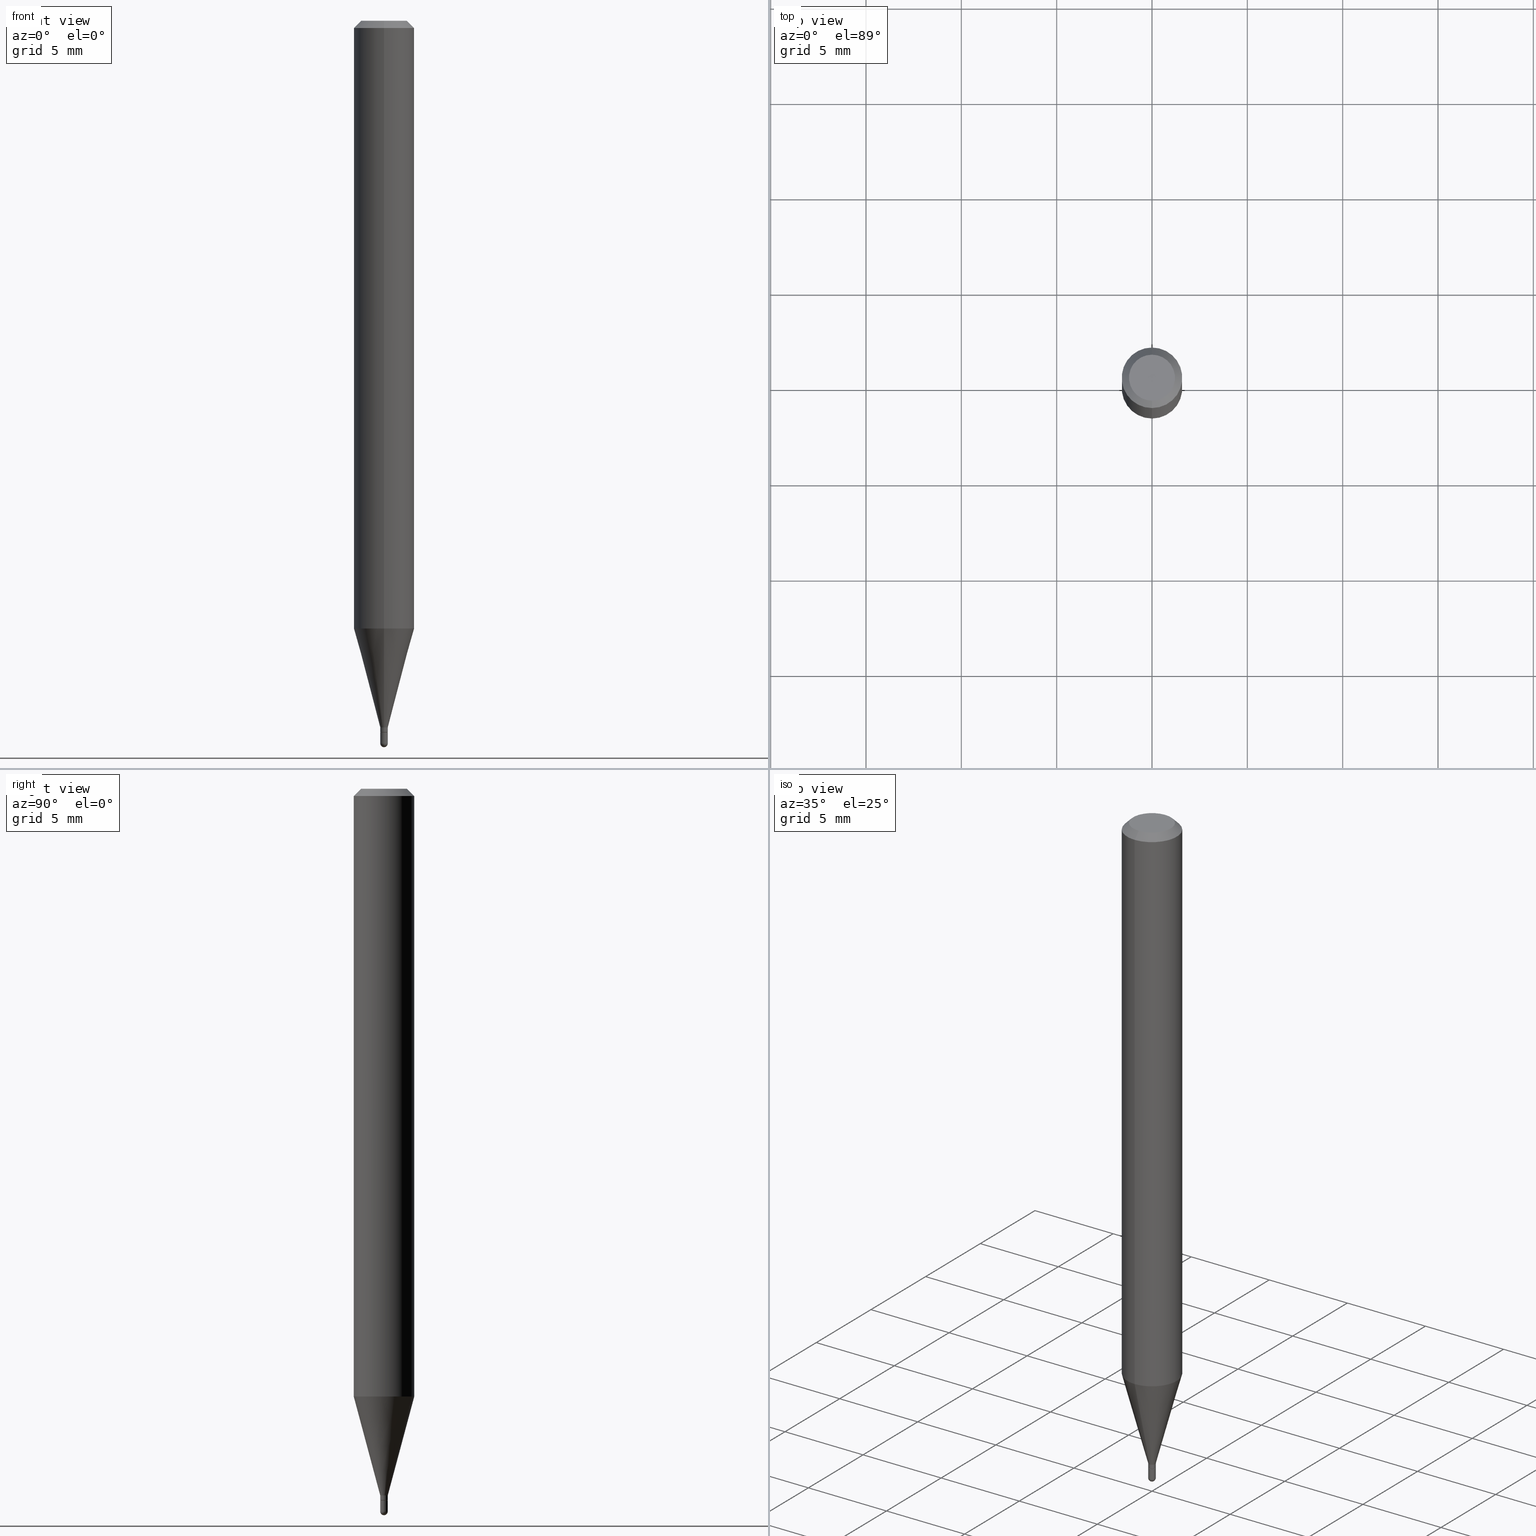
[diagram: canonical four-view strip — front | top / right | iso, engineering-drawing reading convention]
A machine part, canonical four-view strip (front | top / right | iso — engineering-drawing reading convention). The complete STEP part file that produces these views, byte-faithful:
ISO-10303-21;
HEADER;
FILE_DESCRIPTION (( 'STEP AP203' ),
    '1' );
FILE_NAME ('39002.STEP',
    '2024-03-08T12:43:06',
    ( '' ),
    ( '' ),
    'SwSTEP 2.0',
    'SolidWorks 2023',
    '' );
FILE_SCHEMA (( 'CONFIG_CONTROL_DESIGN' ));
ENDSEC;

DATA;
#1 = CARTESIAN_POINT ( 'NONE',  ( 0.000000000000000000, 0.000000000000000000, 0.000000000000000000 ) ) ;
#2 = AXIS2_PLACEMENT_3D ( 'NONE', #502, #470, #120 ) ;
#3 = CONICAL_SURFACE ( 'NONE', #84, 0.007299999999999999198, 0.7853981633974739252 ) ;
#4 = CC_DESIGN_DATE_AND_TIME_ASSIGNMENT ( #161, #36, ( #248 ) ) ;
#5 = LINE ( 'NONE', #97, #508 ) ;
#6 = CARTESIAN_POINT ( 'NONE',  ( 3.590824090298550822E-29, -5.127737057301476164E-15, -1.468500000000000139 ) ) ;
#7 = ORIENTED_EDGE ( 'NONE', *, *, #504, .T. ) ;
#8 = FACE_OUTER_BOUND ( 'NONE', #315, .T. ) ;
#9 = ORIENTED_EDGE ( 'NONE', *, *, #411, .F. ) ;
#10 = VECTOR ( 'NONE', #25, 39.37007874015748143 ) ;
#11 = CIRCLE ( 'NONE', #485, 0.04749999999999999362 ) ;
#12 = DIRECTION ( 'NONE',  ( -6.982962677686265922E-15, -1.000000000000000000, 0.000000000000000000 ) ) ;
#13 = DIRECTION ( 'NONE',  ( 2.445232611711644426E-29, -3.491819582772540483E-15, -1.000000000000000000 ) ) ;
#14 = EDGE_CURVE ( 'NONE', #378, #229, #360, .T. ) ;
#15 = CARTESIAN_POINT ( 'NONE',  ( -0.007799999999999999642, -5.114064936901873450E-15, -1.469000000000000083 ) ) ;
#16 = APPLICATION_PROTOCOL_DEFINITION ( 'international standard', 'config_control_design', 1994, #40 ) ;
#17 = VERTEX_POINT ( 'NONE', #419 ) ;
#18 = AXIS2_PLACEMENT_3D ( 'NONE', #293, #398, #207 ) ;
#19 = CIRCLE ( 'NONE', #281, 0.007299999999999999198 ) ;
#20 = DIRECTION ( 'NONE',  ( 1.000000000000000000, -6.982962677686265922E-15, 4.883557194083112340E-29 ) ) ;
#21 =( NAMED_UNIT ( * ) SI_UNIT ( $, .STERADIAN. ) SOLID_ANGLE_UNIT ( ) );
#22 = EDGE_LOOP ( 'NONE', ( #269, #9, #460, #71 ) ) ;
#23 = EDGE_CURVE ( 'NONE', #110, #17, #61, .T. ) ;
#24 = CARTESIAN_POINT ( 'NONE',  ( 0.000000000000000000, 0.000000000000000000, 0.000000000000000000 ) ) ;
#25 = DIRECTION ( 'NONE',  ( -2.445232611711644986E-29, 3.491819582772540483E-15, 1.000000000000000000 ) ) ;
#26 = FACE_OUTER_BOUND ( 'NONE', #396, .T. ) ;
#27 = EDGE_LOOP ( 'NONE', ( #346, #366, #466, #230 ) ) ;
#28 = EDGE_LOOP ( 'NONE', ( #403, #390, #32, #62 ) ) ;
#29 = PRODUCT_DEFINITION_FORMATION_WITH_SPECIFIED_SOURCE ( 'ANY', '', #184, .NOT_KNOWN. ) ;
#30 = APPROVAL_STATUS ( 'not_yet_approved' ) ;
#31 = CARTESIAN_POINT ( 'NONE',  ( -5.097562754707381679E-17, -0.007300000000005128775, -1.469000000000000083 ) ) ;
#32 = ORIENTED_EDGE ( 'NONE', *, *, #294, .F. ) ;
#33 = DIRECTION ( 'NONE',  ( 1.000000000000000000, -6.982962677686266711E-15, 4.876176775795935793E-29 ) ) ;
#34 = EDGE_CURVE ( 'NONE', #201, #144, #241, .T. ) ;
#35 = DIRECTION ( 'NONE',  ( -2.445232611711644986E-29, 3.491819582772540088E-15, 1.000000000000000000 ) ) ;
#36 = DATE_TIME_ROLE ( 'classification_date' ) ;
#37 = CARTESIAN_POINT ( 'NONE',  ( 3.667848917567469827E-31, -5.237729374158814249E-17, -0.01500000000000000812 ) ) ;
#38 = ORIENTED_EDGE ( 'NONE', *, *, #436, .F. ) ;
#39 = AXIS2_PLACEMENT_3D ( 'NONE', #373, #301, #447 ) ;
#40 = APPLICATION_CONTEXT ( 'configuration controlled 3d designs of mechanical parts and assemblies' ) ;
#41 = EDGE_CURVE ( 'NONE', #463, #117, #324, .T. ) ;
#42 = FACE_OUTER_BOUND ( 'NONE', #263, .T. ) ;
#43 = DIRECTION ( 'NONE',  ( -2.445232611711644986E-29, 3.491819582772540088E-15, 1.000000000000000000 ) ) ;
#44 = DIRECTION ( 'NONE',  ( -2.445232611711644986E-29, 3.491819582772540088E-15, 1.000000000000000000 ) ) ;
#45 = CC_DESIGN_APPROVAL ( #213, ( #248 ) ) ;
#46 = CARTESIAN_POINT ( 'NONE',  ( 5.446710888598957169E-17, 0.007799999999994819758, -1.492199999999999971 ) ) ;
#47 = ORIENTED_EDGE ( 'NONE', *, *, #244, .T. ) ;
#48 = ORIENTED_EDGE ( 'NONE', *, *, #321, .F. ) ;
#49 = ADVANCED_FACE ( 'NONE', ( #177 ), #492, .T. ) ;
#50 = DIRECTION ( 'NONE',  ( 1.000000000000000000, -6.982962677686283277E-15, 0.000000000000000000 ) ) ;
#51 = CARTESIAN_POINT ( 'NONE',  ( 3.592046706604406780E-29, -5.129482967092862317E-15, -1.469000000000000083 ) ) ;
#52 = CIRCLE ( 'NONE', #347, 0.007799999999999999642 ) ;
#53 = LOCAL_TIME ( 7, 43, 6.000000000000000000, #265 ) ;
#54 = CARTESIAN_POINT ( 'NONE',  ( -0.007799999999999999642, 5.542233338928781195E-17, -3.836769370398826244E-31 ) ) ;
#55 = ADVANCED_FACE ( 'NONE', ( #339 ), #266, .F. ) ;
#56 = CARTESIAN_POINT ( 'NONE',  ( -5.446710888591665753E-17, -0.007800000000005017330, -1.459000000000000297 ) ) ;
#57 = PERSON_AND_ORGANIZATION_ROLE ( 'design_owner' ) ;
#58 = DIRECTION ( 'NONE',  ( -2.445232611711644986E-29, 3.491819582772540088E-15, 1.000000000000000000 ) ) ;
#59 = DIRECTION ( 'NONE',  ( -1.807323732225330928E-15, -0.2588190451025182970, 0.9659258262890689783 ) ) ;
#60 = PERSON_AND_ORGANIZATION_ROLE ( 'creator' ) ;
#61 = LINE ( 'NONE', #31, #479 ) ;
#62 = ORIENTED_EDGE ( 'NONE', *, *, #82, .F. ) ;
#63 = CIRCLE ( 'NONE', #464, 0.007299999999999999198 ) ;
#64 = EDGE_CURVE ( 'NONE', #285, #226, #454, .T. ) ;
#65 = VECTOR ( 'NONE', #336, 39.37007874015748143 ) ;
#66 = CARTESIAN_POINT ( 'NONE',  ( 4.440892098500930859E-16, 0.06249999999999560074, -1.254856820825983377 ) ) ;
#67 = DIRECTION ( 'NONE',  ( -6.982962677686265922E-15, -1.000000000000000000, 3.491819582772540483E-15 ) ) ;
#68 = APPLICATION_CONTEXT ( 'configuration controlled 3d designs of mechanical parts and assemblies' ) ;
#69 = APPROVAL_DATE_TIME ( #151, #372 ) ;
#70 = DIRECTION ( 'NONE',  ( -6.982962677686265922E-15, -1.000000000000000000, 0.000000000000000000 ) ) ;
#71 = ORIENTED_EDGE ( 'NONE', *, *, #166, .T. ) ;
#72 = DATE_AND_TIME ( #302, #137 ) ;
#73 = DIRECTION ( 'NONE',  ( -7.105427357601000281E-15, -1.000000000000000000, 0.000000000000000000 ) ) ;
#74 = AXIS2_PLACEMENT_3D ( 'NONE', #474, #389, #159 ) ;
#75 = AXIS2_PLACEMENT_3D ( 'NONE', #333, #438, #169 ) ;
#76 = FACE_OUTER_BOUND ( 'NONE', #27, .T. ) ;
#77 = EDGE_CURVE ( 'NONE', #402, #226, #412, .T. ) ;
#78 = DIRECTION ( 'NONE',  ( 6.982962677686265922E-15, 1.000000000000000000, 0.000000000000000000 ) ) ;
#79 = ORIENTED_EDGE ( 'NONE', *, *, #418, .F. ) ;
#80 = DIRECTION ( 'NONE',  ( -2.445232611711644986E-29, 3.491819582772540483E-15, 1.000000000000000000 ) ) ;
#81 = VERTEX_POINT ( 'NONE', #511 ) ;
#82 = EDGE_CURVE ( 'NONE', #144, #81, #279, .T. ) ;
#83 = DIRECTION ( 'NONE',  ( -6.982962677686265922E-15, -1.000000000000000000, 3.491819582772540483E-15 ) ) ;
#84 = AXIS2_PLACEMENT_3D ( 'NONE', #443, #476, #12 ) ;
#85 = DIRECTION ( 'NONE',  ( -6.982962677686265922E-15, -1.000000000000000000, 3.491819582772540088E-15 ) ) ;
#86 = ORIENTED_EDGE ( 'NONE', *, *, #280, .T. ) ;
#87 = DIRECTION ( 'NONE',  ( -2.445232611711644986E-29, 3.491819582772540088E-15, 1.000000000000000000 ) ) ;
#88 = ORIENTED_EDGE ( 'NONE', *, *, #388, .T. ) ;
#89 = CARTESIAN_POINT ( 'NONE',  ( 3.840629472727447874E-16, 0.04749999999999999362, -1.747056831868805136E-16 ) ) ;
#90 = ORIENTED_EDGE ( 'NONE', *, *, #457, .T. ) ;
#91 = ORIENTED_EDGE ( 'NONE', *, *, #82, .T. ) ;
#92 = ADVANCED_FACE ( 'NONE', ( #468 ), #387, .T. ) ;
#93 = PRODUCT_RELATED_PRODUCT_CATEGORY ( 'detail', '', ( #184 ) ) ;
#94 = FACE_OUTER_BOUND ( 'NONE', #197, .T. ) ;
#95 = EDGE_LOOP ( 'NONE', ( #451, #267, #250, #149 ) ) ;
#96 = CARTESIAN_POINT ( 'NONE',  ( 5.364597654992319424E-17, 0.007299999999994869621, -1.469000000000000083 ) ) ;
#97 = CARTESIAN_POINT ( 'NONE',  ( 4.364351673553919652E-16, 0.06249999999999995143, -0.01500000000000022669 ) ) ;
#98 = AXIS2_PLACEMENT_3D ( 'NONE', #106, #303, #306 ) ;
#99 = LOCAL_TIME ( 7, 43, 6.000000000000000000, #270 ) ;
#100 = CARTESIAN_POINT ( 'NONE',  ( 5.542233338932293475E-17, 0.007799999999994828431, -1.459000000000000297 ) ) ;
#101 = CARTESIAN_POINT ( 'NONE',  ( 3.592393676285966338E-29, -5.128986086760581011E-15, -1.469000000000000083 ) ) ;
#102 = COORDINATED_UNIVERSAL_TIME_OFFSET ( 5, 0, .BEHIND. ) ;
#103 = ORIENTED_EDGE ( 'NONE', *, *, #473, .F. ) ;
#104 = DIRECTION ( 'NONE',  ( -6.982962677686266711E-15, -1.000000000000000000, 3.491819582772540483E-15 ) ) ;
#105 = PERSON_AND_ORGANIZATION_ROLE ( 'classification_officer' ) ;
#106 = CARTESIAN_POINT ( 'NONE',  ( 5.446710888598879516E-17, 0.007799999999994870932, -1.469000000000000083 ) ) ;
#107 = AXIS2_PLACEMENT_3D ( 'NONE', #431, #274, #33 ) ;
#108 = PERSON_AND_ORGANIZATION ( #435, #392 ) ;
#109 = DIRECTION ( 'NONE',  ( 1.000000000000000000, -6.982962677686283277E-15, 0.000000000000000000 ) ) ;
#110 = VERTEX_POINT ( 'NONE', #354 ) ;
#111 = EDGE_LOOP ( 'NONE', ( #153, #300, #143, #217 ) ) ;
#112 = COORDINATED_UNIVERSAL_TIME_OFFSET ( 5, 0, .BEHIND. ) ;
#113 = DIRECTION ( 'NONE',  ( -2.445468806185136597E-29, 3.491481338843145583E-15, 1.000000000000000000 ) ) ;
#114 = ORIENTED_EDGE ( 'NONE', *, *, #244, .F. ) ;
#115 = EDGE_CURVE ( 'NONE', #117, #463, #391, .T. ) ;
#116 = PERSON_AND_ORGANIZATION ( #435, #392 ) ;
#117 = VERTEX_POINT ( 'NONE', #395 ) ;
#118 = VECTOR ( 'NONE', #135, 39.37007874015748143 ) ;
#119 = FACE_OUTER_BOUND ( 'NONE', #272, .T. ) ;
#120 = DIRECTION ( 'NONE',  ( 6.982962677686265922E-15, 1.000000000000000000, -3.483106191921935554E-15 ) ) ;
#121 = ORIENTED_EDGE ( 'NONE', *, *, #321, .T. ) ;
#122 = ADVANCED_FACE ( 'NONE', ( #507 ), #323, .T. ) ;
#123 = CYLINDRICAL_SURFACE ( 'NONE', #154, 0.06250000000000000000 ) ;
#124 = VECTOR ( 'NONE', #408, 39.37007874015748143 ) ;
#125 = DIRECTION ( 'NONE',  ( -6.982962677686265922E-15, -1.000000000000000000, 3.483106191921935554E-15 ) ) ;
#126 = CARTESIAN_POINT ( 'NONE',  ( 0.000000000000000000, 0.000000000000000000, 0.000000000000000000 ) ) ;
#127 = ADVANCED_FACE ( 'NONE', ( #119 ), #320, .T. ) ;
#128 = FACE_OUTER_BOUND ( 'NONE', #426, .T. ) ;
#129 = CARTESIAN_POINT ( 'NONE',  ( 3.592046706604406780E-29, -5.129482967092862317E-15, -1.469000000000000083 ) ) ;
#130 = CIRCLE ( 'NONE', #179, 0.007799999999999999642 ) ;
#131 = ORIENTED_EDGE ( 'NONE', *, *, #385, .F. ) ;
#132 = DIRECTION ( 'NONE',  ( -6.982962677686265922E-15, -1.000000000000000000, 0.000000000000000000 ) ) ;
#133 = EDGE_CURVE ( 'NONE', #17, #285, #432, .T. ) ;
#134 = FACE_OUTER_BOUND ( 'NONE', #456, .T. ) ;
#135 = DIRECTION ( 'NONE',  ( -2.445232611711644986E-29, 3.491819582772540483E-15, 1.000000000000000000 ) ) ;
#136 = AXIS2_PLACEMENT_3D ( 'NONE', #282, #43, #83 ) ;
#137 = LOCAL_TIME ( 7, 43, 6.000000000000000000, #112 ) ;
#138 = LINE ( 'NONE', #56, #361 ) ;
#139 = PERSON_AND_ORGANIZATION ( #435, #392 ) ;
#140 = ORIENTED_EDGE ( 'NONE', *, *, #469, .T. ) ;
#141 = CARTESIAN_POINT ( 'NONE',  ( 3.567594380487290426E-29, -5.094564771265136885E-15, -1.459000000000000297 ) ) ;
#142 = EDGE_CURVE ( 'NONE', #117, #498, #191, .T. ) ;
#143 = ORIENTED_EDGE ( 'NONE', *, *, #77, .F. ) ;
#144 = VERTEX_POINT ( 'NONE', #393 ) ;
#145 = APPROVAL_ROLE ( '' ) ;
#146 = ORIENTED_EDGE ( 'NONE', *, *, #64, .F. ) ;
#147 = VECTOR ( 'NONE', #471, 39.37007874015748143 ) ;
#148 = CARTESIAN_POINT ( 'NONE',  ( 3.592046706604406780E-29, -5.129482967092862317E-15, -1.469000000000000083 ) ) ;
#149 = ORIENTED_EDGE ( 'NONE', *, *, #166, .F. ) ;
#150 = ADVANCED_FACE ( 'NONE', ( #42 ), #382, .T. ) ;
#151 = DATE_AND_TIME ( #491, #99 ) ;
#152 = DIRECTION ( 'NONE',  ( -4.937700262164674260E-15, -0.7071067811865632269, 0.7071067811865319186 ) ) ;
#153 = ORIENTED_EDGE ( 'NONE', *, *, #133, .T. ) ;
#154 = AXIS2_PLACEMENT_3D ( 'NONE', #126, #425, #85 ) ;
#155 = VECTOR ( 'NONE', #437, 39.37007874015748143 ) ;
#156 = PERSON_AND_ORGANIZATION ( #435, #392 ) ;
#157 = PRODUCT_DEFINITION ( 'UNKNOWN', '', #29, #427 ) ;
#158 = DIRECTION ( 'NONE',  ( -6.982962677686265922E-15, -1.000000000000000000, 4.370956789862821150E-15 ) ) ;
#159 = DIRECTION ( 'NONE',  ( 6.982962677686265922E-15, 1.000000000000000000, -3.483106191921935554E-15 ) ) ;
#160 = CC_DESIGN_PERSON_AND_ORGANIZATION_ASSIGNMENT ( #116, #216, ( #29 ) ) ;
#161 = DATE_AND_TIME ( #220, #163 ) ;
#162 = DIRECTION ( 'NONE',  ( -2.445232611711644986E-29, 3.491819582772540088E-15, 1.000000000000000000 ) ) ;
#163 = LOCAL_TIME ( 7, 43, 6.000000000000000000, #102 ) ;
#164 = DIRECTION ( 'NONE',  ( -2.445232611711644986E-29, 3.491819582772540088E-15, 1.000000000000000000 ) ) ;
#165 = ORIENTED_EDGE ( 'NONE', *, *, #14, .T. ) ;
#166 = EDGE_CURVE ( 'NONE', #397, #498, #212, .T. ) ;
#167 = CARTESIAN_POINT ( 'NONE',  ( 3.567594380487290426E-29, -5.094564771265136885E-15, -1.459000000000000297 ) ) ;
#168 = DIRECTION ( 'NONE',  ( -2.445232611711644986E-29, 3.491819582772540088E-15, 1.000000000000000000 ) ) ;
#169 = DIRECTION ( 'NONE',  ( 6.982962677686265922E-15, 1.000000000000000000, 0.000000000000000000 ) ) ;
#170 = CLOSED_SHELL ( 'NONE', ( #92, #313, #55, #209, #127 ) ) ;
#171 = EDGE_CURVE ( 'NONE', #463, #397, #428, .T. ) ;
#172 = AXIS2_PLACEMENT_3D ( 'NONE', #369, #256, #329 ) ;
#173 = DIRECTION ( 'NONE',  ( -6.982962677686265922E-15, -1.000000000000000000, 3.483106191921935554E-15 ) ) ;
#174 = CARTESIAN_POINT ( 'NONE',  ( 5.186961971052321953E-17, 0.007299999999994869621, -1.469000000000000083 ) ) ;
#175 = LINE ( 'NONE', #413, #332 ) ;
#176 = SECURITY_CLASSIFICATION_LEVEL ( 'unclassified' ) ;
#177 = FACE_OUTER_BOUND ( 'NONE', #495, .T. ) ;
#178 = AXIS2_PLACEMENT_3D ( 'NONE', #37, #510, #173 ) ;
#179 = AXIS2_PLACEMENT_3D ( 'NONE', #223, #257, #337 ) ;
#180 = ADVANCED_FACE ( 'NONE', ( #358 ), #123, .T. ) ;
#181 = CARTESIAN_POINT ( 'NONE',  ( -5.446710888595233499E-17, -0.007799999999999922447, 2.723619274562554444E-17 ) ) ;
#182 = DIRECTION ( 'NONE',  ( -6.982962677686265922E-15, -1.000000000000000000, 0.000000000000000000 ) ) ;
#183 = EDGE_LOOP ( 'NONE', ( #165, #478, #240, #186, #310 ) ) ;
#184 = PRODUCT ( '39002', '39002', '', ( #299 ) ) ;
#185 = ORIENTED_EDGE ( 'NONE', *, *, #388, .F. ) ;
#186 = ORIENTED_EDGE ( 'NONE', *, *, #335, .F. ) ;
#187 = CIRCLE ( 'NONE', #178, 0.06250000000000000000 ) ;
#188 = AXIS2_PLACEMENT_3D ( 'NONE', #24, #342, #309 ) ;
#189 =( NAMED_UNIT ( * ) PLANE_ANGLE_UNIT ( ) SI_UNIT ( $, .RADIAN. ) );
#190 = CARTESIAN_POINT ( 'NONE',  ( 3.068416821312490744E-29, -4.381733620535860243E-15, -1.254856820825983155 ) ) ;
#191 = LINE ( 'NONE', #318, #147 ) ;
#192 = CALENDAR_DATE ( 2024, 8, 3 ) ;
#193 = CARTESIAN_POINT ( 'NONE',  ( 3.649128552589461004E-29, -5.209988453821741932E-15, -1.492199999999999971 ) ) ;
#194 = CIRCLE ( 'NONE', #368, 0.007799999999999922447 ) ;
#195 = ADVANCED_FACE ( 'NONE', ( #76 ), #386, .T. ) ;
#196 = FACE_OUTER_BOUND ( 'NONE', #28, .T. ) ;
#197 = EDGE_LOOP ( 'NONE', ( #47, #222, #208, #228 ) ) ;
#198 = ADVANCED_BREP_SHAPE_REPRESENTATION ( '39002', ( #353, #501, #188 ), #440 ) ;
#199 = DIRECTION ( 'NONE',  ( 1.000000000000000000, -6.982962677686266711E-15, 4.876176775795935793E-29 ) ) ;
#200 = DIRECTION ( 'NONE',  ( -6.982962677686265922E-15, -1.000000000000000000, 0.000000000000000000 ) ) ;
#201 = VERTEX_POINT ( 'NONE', #327 ) ;
#202 = ADVANCED_FACE ( 'NONE', ( #236 ), #234, .T. ) ;
#203 = CLOSED_SHELL ( 'NONE', ( #122, #304, #150, #195, #450, #405, #180, #202, #363, #258, #512, #49 ) ) ;
#204 = AXIS2_PLACEMENT_3D ( 'NONE', #296, #20, #409 ) ;
#205 = PLANE ( 'NONE',  #18 ) ;
#206 = EDGE_LOOP ( 'NONE', ( #7, #482 ) ) ;
#207 = DIRECTION ( 'NONE',  ( -6.982962677686265922E-15, -1.000000000000000000, 3.491819582772540483E-15 ) ) ;
#208 = ORIENTED_EDGE ( 'NONE', *, *, #133, .F. ) ;
#209 = ADVANCED_FACE ( 'NONE', ( #196 ), #356, .T. ) ;
#210 = CARTESIAN_POINT ( 'NONE',  ( 4.440892098500934804E-16, 0.06249999999999995143, -0.01500000000000022669 ) ) ;
#211 = DIRECTION ( 'NONE',  ( -2.445232611711644986E-29, 3.491819582772540088E-15, 1.000000000000000000 ) ) ;
#212 = CIRCLE ( 'NONE', #445, 0.06250000000000000000 ) ;
#213 = APPROVAL ( #421, 'UNSPECIFIED' ) ;
#214 = DIRECTION ( 'NONE',  ( -2.445468806185136877E-29, 3.491481338843145188E-15, 1.000000000000000000 ) ) ;
#215 = DIRECTION ( 'NONE',  ( -6.982962677686265922E-15, -1.000000000000000000, 0.000000000000000000 ) ) ;
#216 = PERSON_AND_ORGANIZATION_ROLE ( 'design_supplier' ) ;
#217 = ORIENTED_EDGE ( 'NONE', *, *, #442, .F. ) ;
#218 = EDGE_CURVE ( 'NONE', #498, #397, #187, .T. ) ;
#219 = DIRECTION ( 'NONE',  ( -4.851104656540964275E-15, -0.7071067811865500152, -0.7071067811865450192 ) ) ;
#220 = CALENDAR_DATE ( 2024, 8, 3 ) ;
#221 = ORIENTED_EDGE ( 'NONE', *, *, #34, .T. ) ;
#222 = ORIENTED_EDGE ( 'NONE', *, *, #370, .T. ) ;
#223 = CARTESIAN_POINT ( 'NONE',  ( 3.592393676285966338E-29, -5.128986086760581011E-15, -1.469000000000000083 ) ) ;
#224 = APPLICATION_PROTOCOL_DEFINITION ( 'international standard', 'config_control_design', 1994, #68 ) ;
#225 = ORIENTED_EDGE ( 'NONE', *, *, #442, .T. ) ;
#226 = VERTEX_POINT ( 'NONE', #483 ) ;
#227 = DATE_TIME_ROLE ( 'creation_date' ) ;
#228 = ORIENTED_EDGE ( 'NONE', *, *, #23, .F. ) ;
#229 = VERTEX_POINT ( 'NONE', #284 ) ;
#230 = ORIENTED_EDGE ( 'NONE', *, *, #142, .F. ) ;
#231 = ORIENTED_EDGE ( 'NONE', *, *, #218, .T. ) ;
#232 = CALENDAR_DATE ( 2024, 8, 3 ) ;
#233 = ORIENTED_EDGE ( 'NONE', *, *, #350, .F. ) ;
#234 = CONICAL_SURFACE ( 'NONE', #74, 0.06250000000000000000, 0.7853981633974483900 ) ;
#235 = AXIS2_PLACEMENT_3D ( 'NONE', #141, #340, #215 ) ;
#236 = FACE_OUTER_BOUND ( 'NONE', #22, .T. ) ;
#237 = DIRECTION ( 'NONE',  ( 1.000000000000000000, -6.982962677686283277E-15, 0.000000000000000000 ) ) ;
#238 = DATE_AND_TIME ( #192, #423 ) ;
#239 = DIRECTION ( 'NONE',  ( -6.982962677686265922E-15, -1.000000000000000000, 3.491819582772540088E-15 ) ) ;
#240 = ORIENTED_EDGE ( 'NONE', *, *, #504, .F. ) ;
#241 = CIRCLE ( 'NONE', #331, 0.007800000000000059490 ) ;
#242 = CIRCLE ( 'NONE', #308, 0.04749999999999999362 ) ;
#243 = DIRECTION ( 'NONE',  ( -2.445468806185136597E-29, 3.491481338843145583E-15, 1.000000000000000000 ) ) ;
#244 = EDGE_CURVE ( 'NONE', #110, #291, #63, .T. ) ;
#245 = DIRECTION ( 'NONE',  ( -2.445232611711644986E-29, 3.491819582772540088E-15, 1.000000000000000000 ) ) ;
#246 = DIRECTION ( 'NONE',  ( -2.445232611711644986E-29, 3.491819582772540088E-15, 1.000000000000000000 ) ) ;
#247 = AXIS2_PLACEMENT_3D ( 'NONE', #6, #246, #254 ) ;
#248 = SECURITY_CLASSIFICATION ( '', '', #176 ) ;
#249 = DIRECTION ( 'NONE',  ( -6.982962677686265922E-15, -1.000000000000000000, 0.000000000000000000 ) ) ;
#250 = ORIENTED_EDGE ( 'NONE', *, *, #142, .T. ) ;
#251 = EDGE_CURVE ( 'NONE', #285, #17, #288, .T. ) ;
#252 = CARTESIAN_POINT ( 'NONE',  ( 3.649128552589461004E-29, -5.209988453821741932E-15, -1.492199999999999971 ) ) ;
#253 = ORIENTED_EDGE ( 'NONE', *, *, #251, .T. ) ;
#254 = DIRECTION ( 'NONE',  ( -6.982962677686265922E-15, -1.000000000000000000, 0.000000000000000000 ) ) ;
#255 = DIMENSIONAL_EXPONENTS ( 1.000000000000000000, 0.000000000000000000, 0.000000000000000000, 0.000000000000000000, 0.000000000000000000, 0.000000000000000000, 0.000000000000000000 ) ;
#256 = DIRECTION ( 'NONE',  ( -2.445468806185136597E-29, 3.491481338843145583E-15, 1.000000000000000000 ) ) ;
#257 = DIRECTION ( 'NONE',  ( -2.445468806185136597E-29, 3.491481338843145583E-15, 1.000000000000000000 ) ) ;
#258 = ADVANCED_FACE ( 'NONE', ( #134 ), #205, .F. ) ;
#259 = DIRECTION ( 'NONE',  ( -2.445468806185136597E-29, 3.491481338843145583E-15, 1.000000000000000000 ) ) ;
#260 = DIRECTION ( 'NONE',  ( -2.445232611711644986E-29, 3.491819582772540088E-15, 1.000000000000000000 ) ) ;
#261 = CARTESIAN_POINT ( 'NONE',  ( 3.648461522883901316E-29, -5.210943678325075887E-15, -1.492199999999999971 ) ) ;
#262 = LINE ( 'NONE', #181, #118 ) ;
#263 = EDGE_LOOP ( 'NONE', ( #131, #90, #231, #410 ) ) ;
#264 = ORIENTED_EDGE ( 'NONE', *, *, #280, .F. ) ;
#265 = COORDINATED_UNIVERSAL_TIME_OFFSET ( 5, 0, .BEHIND. ) ;
#266 = PLANE ( 'NONE',  #98 ) ;
#267 = ORIENTED_EDGE ( 'NONE', *, *, #41, .T. ) ;
#268 = PERSON_AND_ORGANIZATION ( #435, #392 ) ;
#269 = ORIENTED_EDGE ( 'NONE', *, *, #457, .F. ) ;
#270 = COORDINATED_UNIVERSAL_TIME_OFFSET ( 5, 0, .BEHIND. ) ;
#271 = VERTEX_POINT ( 'NONE', #362 ) ;
#272 = EDGE_LOOP ( 'NONE', ( #233, #88, #91, #459, #103 ) ) ;
#273 = CIRCLE ( 'NONE', #204, 0.007800000000000059490 ) ;
#274 = DIRECTION ( 'NONE',  ( -2.445468806185136597E-29, 3.491481338843145583E-15, 1.000000000000000000 ) ) ;
#275 = EDGE_CURVE ( 'NONE', #352, #397, #5, .T. ) ;
#276 = CARTESIAN_POINT ( 'NONE',  ( 3.667848917567469827E-31, -5.237729374158814249E-17, -0.01500000000000000812 ) ) ;
#277 = DIRECTION ( 'NONE',  ( -2.445468806185136597E-29, 3.491481338843145583E-15, 1.000000000000000000 ) ) ;
#278 = AXIS2_PLACEMENT_3D ( 'NONE', #190, #349, #500 ) ;
#279 = CIRCLE ( 'NONE', #407, 0.007799999999999999642 ) ;
#280 = EDGE_CURVE ( 'NONE', #226, #402, #194, .T. ) ;
#281 = AXIS2_PLACEMENT_3D ( 'NONE', #129, #87, #249 ) ;
#282 = CARTESIAN_POINT ( 'NONE',  ( 0.000000000000000000, 0.000000000000000000, 0.000000000000000000 ) ) ;
#283 = ORIENTED_EDGE ( 'NONE', *, *, #385, .T. ) ;
#284 = CARTESIAN_POINT ( 'NONE',  ( -0.007799999999999999642, -5.114064936901873450E-15, -1.492199999999999971 ) ) ;
#285 = VERTEX_POINT ( 'NONE', #444 ) ;
#286 = CC_DESIGN_PERSON_AND_ORGANIZATION_ASSIGNMENT ( #488, #60, ( #157 ) ) ;
#287 = FACE_OUTER_BOUND ( 'NONE', #312, .T. ) ;
#288 = CIRCLE ( 'NONE', #247, 0.007799999999999923314 ) ;
#289 = AXIS2_PLACEMENT_3D ( 'NONE', #148, #260, #182 ) ;
#290 = CARTESIAN_POINT ( 'NONE',  ( 0.007799999999999999642, -5.446710888595287733E-17, 3.803417885120829600E-31 ) ) ;
#291 = VERTEX_POINT ( 'NONE', #96 ) ;
#292 = PLANE ( 'NONE',  #480 ) ;
#293 = CARTESIAN_POINT ( 'NONE',  ( 3.592046706604406780E-29, -5.129482967092862317E-15, -1.469000000000000083 ) ) ;
#294 = EDGE_CURVE ( 'NONE', #81, #378, #446, .T. ) ;
#295 = AXIS2_PLACEMENT_3D ( 'NONE', #1, #164, #239 ) ;
#296 = CARTESIAN_POINT ( 'NONE',  ( 3.648461522883901316E-29, -5.210943678325075887E-15, -1.492199999999999971 ) ) ;
#297 = CONICAL_SURFACE ( 'NONE', #289, 0.007299999999999999198, 0.7853981633974739252 ) ;
#298 = FACE_OUTER_BOUND ( 'NONE', #377, .T. ) ;
#299 = MECHANICAL_CONTEXT ( 'NONE', #40, 'mechanical' ) ;
#300 = ORIENTED_EDGE ( 'NONE', *, *, #64, .T. ) ;
#301 = DIRECTION ( 'NONE',  ( -2.445232611711644986E-29, 3.491819582772540088E-15, 1.000000000000000000 ) ) ;
#302 = CALENDAR_DATE ( 2024, 8, 3 ) ;
#303 = DIRECTION ( 'NONE',  ( 2.438088387897960049E-29, -3.491481338843145188E-15, -1.000000000000000000 ) ) ;
#304 = ADVANCED_FACE ( 'NONE', ( #94 ), #3, .T. ) ;
#305 =( LENGTH_UNIT ( ) NAMED_UNIT ( * ) SI_UNIT ( $, .METRE. ) );
#306 = DIRECTION ( 'NONE',  ( -1.000000000000000000, 6.982962677686265922E-15, -4.876176775795935793E-29 ) ) ;
#307 = AXIS2_PLACEMENT_3D ( 'NONE', #351, #245, #158 ) ;
#308 = AXIS2_PLACEMENT_3D ( 'NONE', #490, #452, #104 ) ;
#309 = DIRECTION ( 'NONE',  ( 1.000000000000000000, 0.000000000000000000, 0.000000000000000000 ) ) ;
#310 = ORIENTED_EDGE ( 'NONE', *, *, #294, .T. ) ;
#311 = PERSON_AND_ORGANIZATION ( #435, #392 ) ;
#312 = EDGE_LOOP ( 'NONE', ( #343, #283 ) ) ;
#313 = ADVANCED_FACE ( 'NONE', ( #128 ), #406, .T. ) ;
#314 = CARTESIAN_POINT ( 'NONE',  ( 3.648461522883901316E-29, -5.210943678325075887E-15, -1.492199999999999971 ) ) ;
#315 = EDGE_LOOP ( 'NONE', ( #374, #86, #439, #381 ) ) ;
#316 = AXIS2_PLACEMENT_3D ( 'NONE', #344, #417, #70 ) ;
#317 = APPROVAL_PERSON_ORGANIZATION ( #156, #213, #509 ) ;
#318 = CARTESIAN_POINT ( 'NONE',  ( -4.364351673553916201E-16, -0.06250000000000000000, 2.182387239232837555E-16 ) ) ;
#319 = COORDINATED_UNIVERSAL_TIME_OFFSET ( 5, 0, .BEHIND. ) ;
#320 = CYLINDRICAL_SURFACE ( 'NONE', #505, 0.007799999999999999642 ) ;
#321 = EDGE_CURVE ( 'NONE', #291, #110, #19, .T. ) ;
#322 = UNCERTAINTY_MEASURE_WITH_UNIT (LENGTH_MEASURE( 1.000000000000000082E-05 ), #380, 'distance_accuracy_value', 'NONE');
#323 = CYLINDRICAL_SURFACE ( 'NONE', #136, 0.007799999999999922447 ) ;
#324 = CIRCLE ( 'NONE', #278, 0.06250000000000000000 ) ;
#325 = APPROVAL_PERSON_ORGANIZATION ( #348, #372, #145 ) ;
#326 = APPROVAL ( #30, 'UNSPECIFIED' ) ;
#327 = CARTESIAN_POINT ( 'NONE',  ( 3.667869694424925332E-29, -5.237699620516385943E-15, -1.500000000000000222 ) ) ;
#328 = ORIENTED_EDGE ( 'NONE', *, *, #77, .T. ) ;
#329 = DIRECTION ( 'NONE',  ( 1.000000000000000000, -6.982962677686283277E-15, 0.000000000000000000 ) ) ;
#330 = DIRECTION ( 'NONE',  ( -6.982962677686266711E-15, -1.000000000000000000, 3.491819582772540483E-15 ) ) ;
#331 = AXIS2_PLACEMENT_3D ( 'NONE', #261, #455, #73 ) ;
#332 = VECTOR ( 'NONE', #219, 39.37007874015748143 ) ;
#333 = CARTESIAN_POINT ( 'NONE',  ( 3.648461522883901316E-29, -5.210943678325075887E-15, -1.492199999999999971 ) ) ;
#334 = LINE ( 'NONE', #290, #155 ) ;
#335 = EDGE_CURVE ( 'NONE', #81, #271, #334, .T. ) ;
#336 = DIRECTION ( 'NONE',  ( 5.024295867788190974E-15, 0.7071067811865681119, 0.7071067811865270336 ) ) ;
#337 = DIRECTION ( 'NONE',  ( 1.000000000000000000, -6.982962677686283277E-15, 0.000000000000000000 ) ) ;
#338 = CC_DESIGN_SECURITY_CLASSIFICATION ( #248, ( #29 ) ) ;
#339 = FACE_OUTER_BOUND ( 'NONE', #206, .T. ) ;
#340 = DIRECTION ( 'NONE',  ( -2.445232611711644986E-29, 3.491819582772540088E-15, 1.000000000000000000 ) ) ;
#341 = CC_DESIGN_PERSON_AND_ORGANIZATION_ASSIGNMENT ( #108, #57, ( #184 ) ) ;
#342 = DIRECTION ( 'NONE',  ( 0.000000000000000000, 0.000000000000000000, 1.000000000000000000 ) ) ;
#343 = ORIENTED_EDGE ( 'NONE', *, *, #411, .T. ) ;
#344 = CARTESIAN_POINT ( 'NONE',  ( 3.567594380487290426E-29, -5.094564771265136885E-15, -1.459000000000000297 ) ) ;
#345 = PRODUCT_DEFINITION_SHAPE ( 'NONE', 'NONE',  #157 ) ;
#346 = ORIENTED_EDGE ( 'NONE', *, *, #115, .T. ) ;
#347 = AXIS2_PLACEMENT_3D ( 'NONE', #252, #404, #50 ) ;
#348 = PERSON_AND_ORGANIZATION ( #435, #392 ) ;
#349 = DIRECTION ( 'NONE',  ( -2.445232611711644986E-29, 3.491819582772540088E-15, 1.000000000000000000 ) ) ;
#350 = EDGE_CURVE ( 'NONE', #229, #429, #371, .T. ) ;
#351 = CARTESIAN_POINT ( 'NONE',  ( 3.068416821312490744E-29, -4.381733620535860243E-15, -1.254856820825983155 ) ) ;
#352 = VERTEX_POINT ( 'NONE', #89 ) ;
#353 = MANIFOLD_SOLID_BREP ( 'Body-Move/Copy2[1]', #170 ) ;
#354 = CARTESIAN_POINT ( 'NONE',  ( -5.097562754707381679E-17, -0.007300000000005128775, -1.469000000000000083 ) ) ;
#355 = AXIS2_PLACEMENT_3D ( 'NONE', #101, #259, #458 ) ;
#356 = SPHERICAL_SURFACE ( 'NONE', #399, 0.007800000000000059490 ) ;
#357 = CARTESIAN_POINT ( 'NONE',  ( 3.590824090298550822E-29, -5.127737057301476164E-15, -1.468500000000000139 ) ) ;
#358 = FACE_OUTER_BOUND ( 'NONE', #95, .T. ) ;
#359 = ORIENTED_EDGE ( 'NONE', *, *, #251, .F. ) ;
#360 = CIRCLE ( 'NONE', #375, 0.007799999999999999642 ) ;
#361 = VECTOR ( 'NONE', #59, 39.37007874015748143 ) ;
#362 = CARTESIAN_POINT ( 'NONE',  ( 0.007799999999999999642, -5.183453195646533500E-15, -1.469000000000000083 ) ) ;
#363 = ADVANCED_FACE ( 'NONE', ( #287 ), #292, .F. ) ;
#364 = CARTESIAN_POINT ( 'NONE',  ( 2.162625587450672198E-46, -3.088253583849936035E-32, -8.844253005184854386E-18 ) ) ;
#365 = CARTESIAN_POINT ( 'NONE',  ( -5.446710888591665753E-17, -0.007800000000005017330, -1.459000000000000297 ) ) ;
#366 = ORIENTED_EDGE ( 'NONE', *, *, #171, .T. ) ;
#367 = AXIS2_PLACEMENT_3D ( 'NONE', #357, #35, #200 ) ;
#368 = AXIS2_PLACEMENT_3D ( 'NONE', #167, #44, #477 ) ;
#369 = CARTESIAN_POINT ( 'NONE',  ( 3.649128552589461004E-29, -5.209988453821741932E-15, -1.492199999999999971 ) ) ;
#370 = EDGE_CURVE ( 'NONE', #291, #285, #401, .T. ) ;
#371 = LINE ( 'NONE', #54, #414 ) ;
#372 = APPROVAL ( #499, 'UNSPECIFIED' ) ;
#373 = CARTESIAN_POINT ( 'NONE',  ( 3.567594380487290426E-29, -5.094564771265136885E-15, -1.459000000000000297 ) ) ;
#374 = ORIENTED_EDGE ( 'NONE', *, *, #469, .F. ) ;
#375 = AXIS2_PLACEMENT_3D ( 'NONE', #415, #113, #109 ) ;
#376 = LINE ( 'NONE', #100, #124 ) ;
#377 = EDGE_LOOP ( 'NONE', ( #328, #140, #383, #79 ) ) ;
#378 = VERTEX_POINT ( 'NONE', #46 ) ;
#379 = CARTESIAN_POINT ( 'NONE',  ( 5.542233338928725729E-17, 0.007799999999999922447, -2.723619274562554444E-17 ) ) ;
#380 =( CONVERSION_BASED_UNIT ( 'INCH', #449 ) LENGTH_UNIT ( ) NAMED_UNIT ( #255 ) );
#381 = ORIENTED_EDGE ( 'NONE', *, *, #41, .F. ) ;
#382 = CONICAL_SURFACE ( 'NONE', #2, 0.06250000000000000000, 0.7853981633974483900 ) ;
#383 = ORIENTED_EDGE ( 'NONE', *, *, #115, .F. ) ;
#384 = CC_DESIGN_APPROVAL ( #372, ( #29 ) ) ;
#385 = EDGE_CURVE ( 'NONE', #503, #352, #11, .T. ) ;
#386 = CYLINDRICAL_SURFACE ( 'NONE', #295, 0.06250000000000000000 ) ;
#387 = CYLINDRICAL_SURFACE ( 'NONE', #107, 0.007799999999999999642 ) ;
#388 = EDGE_CURVE ( 'NONE', #229, #144, #52, .T. ) ;
#389 = DIRECTION ( 'NONE',  ( 2.445232611711644986E-29, -3.491819582772540088E-15, -1.000000000000000000 ) ) ;
#390 = ORIENTED_EDGE ( 'NONE', *, *, #436, .T. ) ;
#391 = CIRCLE ( 'NONE', #307, 0.06250000000000000000 ) ;
#392 = ORGANIZATION ( 'UNSPECIFIED', 'UNSPECIFIED', '' ) ;
#393 = CARTESIAN_POINT ( 'NONE',  ( -5.542233338925151819E-17, -0.007800000000005239374, -1.492199999999999971 ) ) ;
#394 = CC_DESIGN_PERSON_AND_ORGANIZATION_ASSIGNMENT ( #311, #461, ( #29 ) ) ;
#395 = CARTESIAN_POINT ( 'NONE',  ( -4.364351673553610024E-16, -0.06250000000000438538, -1.254856820825982933 ) ) ;
#396 = EDGE_LOOP ( 'NONE', ( #493, #121, #475, #359 ) ) ;
#397 = VERTEX_POINT ( 'NONE', #210 ) ;
#398 = DIRECTION ( 'NONE',  ( -2.445232611711644426E-29, 3.491819582772540483E-15, 1.000000000000000000 ) ) ;
#399 = AXIS2_PLACEMENT_3D ( 'NONE', #314, #465, #78 ) ;
#400 = CONICAL_SURFACE ( 'NONE', #235, 0.007799999999999922447, 0.2617993877991502960 ) ;
#401 = LINE ( 'NONE', #174, #65 ) ;
#402 = VERTEX_POINT ( 'NONE', #365 ) ;
#403 = ORIENTED_EDGE ( 'NONE', *, *, #34, .F. ) ;
#404 = DIRECTION ( 'NONE',  ( -2.445468806185136597E-29, 3.491481338843145583E-15, 1.000000000000000000 ) ) ;
#405 = ADVANCED_FACE ( 'NONE', ( #8 ), #433, .T. ) ;
#406 = SPHERICAL_SURFACE ( 'NONE', #75, 0.007800000000000059490 ) ;
#407 = AXIS2_PLACEMENT_3D ( 'NONE', #193, #277, #237 ) ;
#408 = DIRECTION ( 'NONE',  ( 1.839019923739601104E-15, 0.2588190451025250693, 0.9659258262890670910 ) ) ;
#409 = DIRECTION ( 'NONE',  ( 6.982962677686265922E-15, 1.000000000000000000, 0.000000000000000000 ) ) ;
#410 = ORIENTED_EDGE ( 'NONE', *, *, #275, .F. ) ;
#411 = EDGE_CURVE ( 'NONE', #352, #503, #242, .T. ) ;
#412 = CIRCLE ( 'NONE', #316, 0.007799999999999922447 ) ;
#413 = CARTESIAN_POINT ( 'NONE',  ( -4.287811248607203282E-16, -0.06250000000000005551, -0.01499999999999979128 ) ) ;
#414 = VECTOR ( 'NONE', #214, 39.37007874015748143 ) ;
#415 = CARTESIAN_POINT ( 'NONE',  ( 3.649128552589461004E-29, -5.209988453821741932E-15, -1.492199999999999971 ) ) ;
#416 = DATE_AND_TIME ( #232, #53 ) ;
#417 = DIRECTION ( 'NONE',  ( -2.445232611711644986E-29, 3.491819582772540088E-15, 1.000000000000000000 ) ) ;
#418 = EDGE_CURVE ( 'NONE', #402, #117, #138, .T. ) ;
#419 = CARTESIAN_POINT ( 'NONE',  ( -5.446710888591661439E-17, -0.007800000000005077178, -1.468500000000000139 ) ) ;
#420 = VECTOR ( 'NONE', #80, 39.37007874015748143 ) ;
#421 = APPROVAL_STATUS ( 'not_yet_approved' ) ;
#422 = CARTESIAN_POINT ( 'NONE',  ( 4.440892098500625669E-16, 0.06250000000000000000, -2.182387239232837555E-16 ) ) ;
#423 = LOCAL_TIME ( 7, 43, 6.000000000000000000, #319 ) ;
#424 = CC_DESIGN_DATE_AND_TIME_ASSIGNMENT ( #416, #227, ( #157 ) ) ;
#425 = DIRECTION ( 'NONE',  ( -2.445232611711644986E-29, 3.491819582772540088E-15, 1.000000000000000000 ) ) ;
#426 = EDGE_LOOP ( 'NONE', ( #38, #221, #185, #489 ) ) ;
#427 = DESIGN_CONTEXT ( 'detailed design', #68, 'design' ) ;
#428 = LINE ( 'NONE', #422, #420 ) ;
#429 = VERTEX_POINT ( 'NONE', #15 ) ;
#430 = APPROVAL_DATE_TIME ( #238, #213 ) ;
#431 = CARTESIAN_POINT ( 'NONE',  ( 0.000000000000000000, 0.000000000000000000, 0.000000000000000000 ) ) ;
#432 = CIRCLE ( 'NONE', #367, 0.007799999999999923314 ) ;
#433 = CONICAL_SURFACE ( 'NONE', #39, 0.007799999999999922447, 0.2617993877991502960 ) ;
#434 = CARTESIAN_POINT ( 'NONE',  ( 0.000000000000000000, 0.000000000000000000, 0.000000000000000000 ) ) ;
#435 = PERSON ( 'UNSPECIFIED', 'UNSPECIFIED', 'UNSPECIFIED', ('UNSPECIFIED'), ('UNSPECIFIED'), ('UNSPECIFIED') ) ;
#436 = EDGE_CURVE ( 'NONE', #201, #378, #273, .T. ) ;
#437 = DIRECTION ( 'NONE',  ( -2.445468806185136877E-29, 3.491481338843145188E-15, 1.000000000000000000 ) ) ;
#438 = DIRECTION ( 'NONE',  ( -1.000000000000000000, 6.982962677686265922E-15, -4.883557194083112901E-29 ) ) ;
#439 = ORIENTED_EDGE ( 'NONE', *, *, #418, .T. ) ;
#440 =( GEOMETRIC_REPRESENTATION_CONTEXT ( 3 ) GLOBAL_UNCERTAINTY_ASSIGNED_CONTEXT ( ( #322 ) ) GLOBAL_UNIT_ASSIGNED_CONTEXT ( ( #380, #189, #21 ) ) REPRESENTATION_CONTEXT ( 'NONE', 'WORKASPACE' ) );
#441 = CARTESIAN_POINT ( 'NONE',  ( 3.316907271900976096E-16, 0.04749999999999999362, -1.702835566842880726E-16 ) ) ;
#442 = EDGE_CURVE ( 'NONE', #17, #402, #262, .T. ) ;
#443 = CARTESIAN_POINT ( 'NONE',  ( 3.592046706604406780E-29, -5.129482967092862317E-15, -1.469000000000000083 ) ) ;
#444 = CARTESIAN_POINT ( 'NONE',  ( 5.542233338932298406E-17, 0.007799999999994770318, -1.468500000000000139 ) ) ;
#445 = AXIS2_PLACEMENT_3D ( 'NONE', #276, #162, #125 ) ;
#446 = CIRCLE ( 'NONE', #172, 0.007799999999999999642 ) ;
#447 = DIRECTION ( 'NONE',  ( -6.982962677686265922E-15, -1.000000000000000000, 0.000000000000000000 ) ) ;
#448 = CARTESIAN_POINT ( 'NONE',  ( -3.773273898774340269E-16, -0.04749999999999999362, 1.570171771765107987E-16 ) ) ;
#449 = LENGTH_MEASURE_WITH_UNIT ( LENGTH_MEASURE( 0.02539999999999999897 ), #305 );
#450 = ADVANCED_FACE ( 'NONE', ( #298 ), #400, .T. ) ;
#451 = ORIENTED_EDGE ( 'NONE', *, *, #171, .F. ) ;
#452 = DIRECTION ( 'NONE',  ( -2.445232611711644986E-29, 3.491819582772540088E-15, 1.000000000000000000 ) ) ;
#453 = APPROVAL_DATE_TIME ( #72, #326 ) ;
#454 = LINE ( 'NONE', #379, #10 ) ;
#455 = DIRECTION ( 'NONE',  ( -1.000000000000000000, 7.105427357601001070E-15, -4.926315508542082329E-29 ) ) ;
#456 = EDGE_LOOP ( 'NONE', ( #114, #48 ) ) ;
#457 = EDGE_CURVE ( 'NONE', #503, #498, #175, .T. ) ;
#458 = DIRECTION ( 'NONE',  ( 1.000000000000000000, -6.982962677686283277E-15, 0.000000000000000000 ) ) ;
#459 = ORIENTED_EDGE ( 'NONE', *, *, #335, .T. ) ;
#460 = ORIENTED_EDGE ( 'NONE', *, *, #275, .T. ) ;
#461 = PERSON_AND_ORGANIZATION_ROLE ( 'creator' ) ;
#462 = CARTESIAN_POINT ( 'NONE',  ( 0.000000000000000000, 0.000000000000000000, 0.000000000000000000 ) ) ;
#463 = VERTEX_POINT ( 'NONE', #66 ) ;
#464 = AXIS2_PLACEMENT_3D ( 'NONE', #51, #211, #132 ) ;
#465 = DIRECTION ( 'NONE',  ( -1.000000000000000000, 6.982962677686265922E-15, -4.883557194083112901E-29 ) ) ;
#466 = ORIENTED_EDGE ( 'NONE', *, *, #218, .F. ) ;
#467 = CIRCLE ( 'NONE', #355, 0.007799999999999999642 ) ;
#468 = FACE_OUTER_BOUND ( 'NONE', #183, .T. ) ;
#469 = EDGE_CURVE ( 'NONE', #226, #463, #376, .T. ) ;
#470 = DIRECTION ( 'NONE',  ( 2.445232611711644986E-29, -3.491819582772540088E-15, -1.000000000000000000 ) ) ;
#471 = DIRECTION ( 'NONE',  ( -2.445232611711644986E-29, 3.491819582772540483E-15, 1.000000000000000000 ) ) ;
#472 = CC_DESIGN_APPROVAL ( #326, ( #157 ) ) ;
#473 = EDGE_CURVE ( 'NONE', #429, #271, #130, .T. ) ;
#474 = CARTESIAN_POINT ( 'NONE',  ( 3.667848917567469827E-31, -5.237729374158814249E-17, -0.01500000000000000812 ) ) ;
#475 = ORIENTED_EDGE ( 'NONE', *, *, #23, .T. ) ;
#476 = DIRECTION ( 'NONE',  ( -2.445232611711644986E-29, 3.491819582772540088E-15, 1.000000000000000000 ) ) ;
#477 = DIRECTION ( 'NONE',  ( -6.982962677686265922E-15, -1.000000000000000000, 0.000000000000000000 ) ) ;
#478 = ORIENTED_EDGE ( 'NONE', *, *, #350, .T. ) ;
#479 = VECTOR ( 'NONE', #152, 39.37007874015748143 ) ;
#480 = AXIS2_PLACEMENT_3D ( 'NONE', #441, #13, #481 ) ;
#481 = DIRECTION ( 'NONE',  ( 6.982962677686265922E-15, 1.000000000000000000, -3.491819582772540483E-15 ) ) ;
#482 = ORIENTED_EDGE ( 'NONE', *, *, #473, .T. ) ;
#483 = CARTESIAN_POINT ( 'NONE',  ( 2.497557716197082045E-16, 0.007799999999994826697, -1.459000000000000297 ) ) ;
#484 = DIRECTION ( 'NONE',  ( 4.937700262164548042E-15, 0.7071067811865451302, -0.7071067811865499042 ) ) ;
#485 = AXIS2_PLACEMENT_3D ( 'NONE', #364, #168, #330 ) ;
#486 = CARTESIAN_POINT ( 'NONE',  ( -4.364351673553912750E-16, -0.06250000000000005551, -0.01499999999999979128 ) ) ;
#487 = CC_DESIGN_PERSON_AND_ORGANIZATION_ASSIGNMENT ( #139, #105, ( #248 ) ) ;
#488 = PERSON_AND_ORGANIZATION ( #435, #392 ) ;
#489 = ORIENTED_EDGE ( 'NONE', *, *, #14, .F. ) ;
#490 = CARTESIAN_POINT ( 'NONE',  ( 2.162625587450672198E-46, -3.088253583849936035E-32, -8.844253005184854386E-18 ) ) ;
#491 = CALENDAR_DATE ( 2024, 8, 3 ) ;
#492 = CYLINDRICAL_SURFACE ( 'NONE', #496, 0.007799999999999922447 ) ;
#493 = ORIENTED_EDGE ( 'NONE', *, *, #370, .F. ) ;
#494 = APPROVAL_ROLE ( '' ) ;
#495 = EDGE_LOOP ( 'NONE', ( #146, #253, #225, #264 ) ) ;
#496 = AXIS2_PLACEMENT_3D ( 'NONE', #462, #58, #67 ) ;
#497 = APPROVAL_PERSON_ORGANIZATION ( #268, #326, #494 ) ;
#498 = VERTEX_POINT ( 'NONE', #486 ) ;
#499 = APPROVAL_STATUS ( 'not_yet_approved' ) ;
#500 = DIRECTION ( 'NONE',  ( -6.982962677686265922E-15, -1.000000000000000000, 4.370956789862821150E-15 ) ) ;
#501 = MANIFOLD_SOLID_BREP ( 'Body-Move/Copy2[2]', #203 ) ;
#502 = CARTESIAN_POINT ( 'NONE',  ( 3.667848917567469827E-31, -5.237729374158814249E-17, -0.01500000000000000812 ) ) ;
#503 = VERTEX_POINT ( 'NONE', #448 ) ;
#504 = EDGE_CURVE ( 'NONE', #271, #429, #467, .T. ) ;
#505 = AXIS2_PLACEMENT_3D ( 'NONE', #434, #243, #199 ) ;
#506 = SHAPE_DEFINITION_REPRESENTATION ( #345, #198 ) ;
#507 = FACE_OUTER_BOUND ( 'NONE', #111, .T. ) ;
#508 = VECTOR ( 'NONE', #484, 39.37007874015748143 ) ;
#509 = APPROVAL_ROLE ( '' ) ;
#510 = DIRECTION ( 'NONE',  ( -2.445232611711644986E-29, 3.491819582772540088E-15, 1.000000000000000000 ) ) ;
#511 = CARTESIAN_POINT ( 'NONE',  ( 0.007799999999999999642, -5.223954379177113961E-15, -1.492199999999999971 ) ) ;
#512 = ADVANCED_FACE ( 'NONE', ( #26 ), #297, .T. ) ;
ENDSEC;
END-ISO-10303-21;
